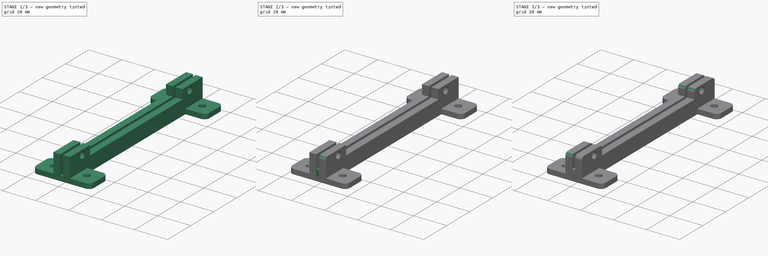
[diagram: build sequence overview — one tinted view per stage of 3, left to right]
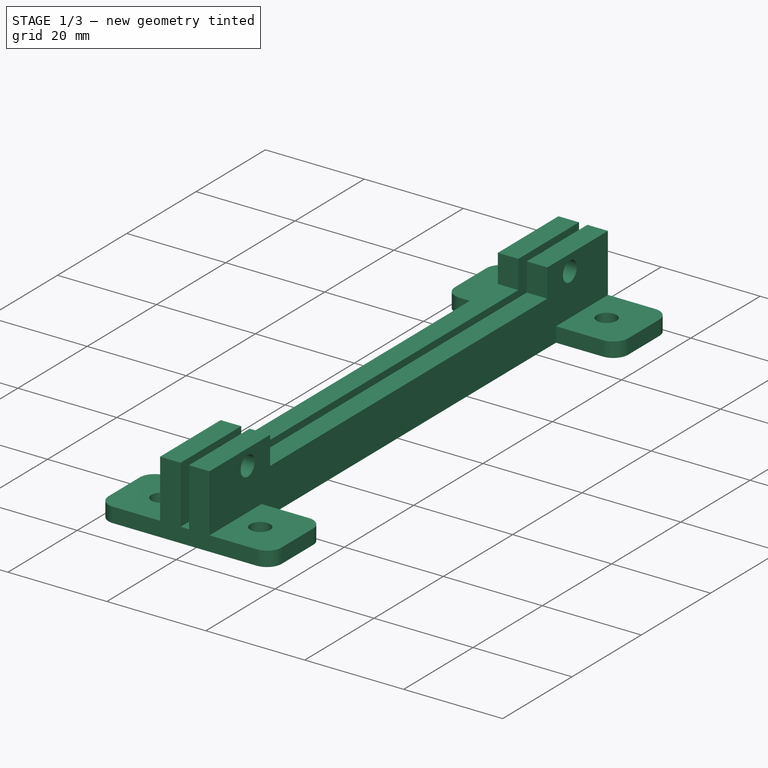
[diagram: stage 1 of 3 — iso view after this stage's code; geometry added in this stage tinted green]
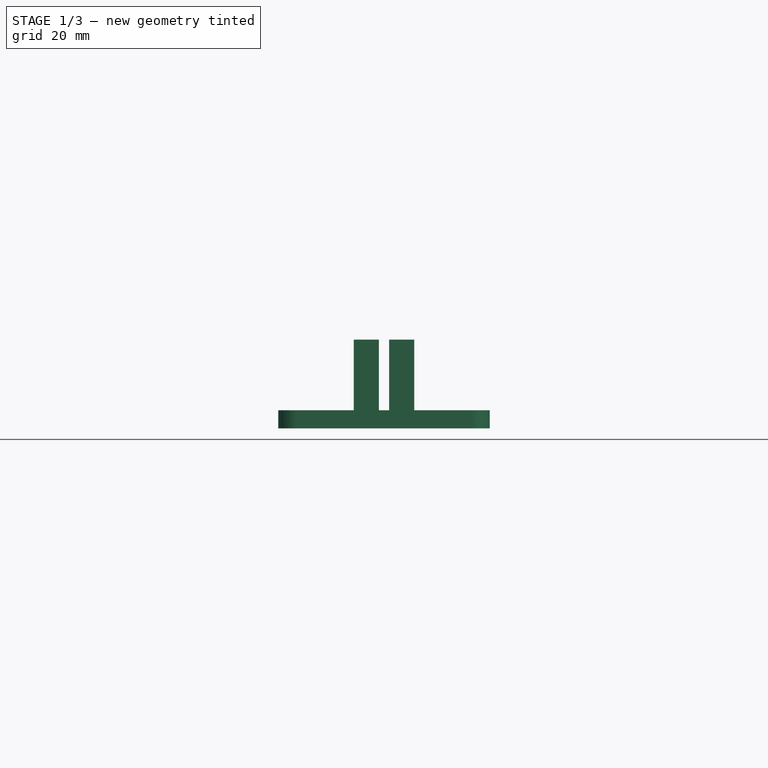
[diagram: stage 1 of 3 — front view after this stage's code; geometry added in this stage tinted green]
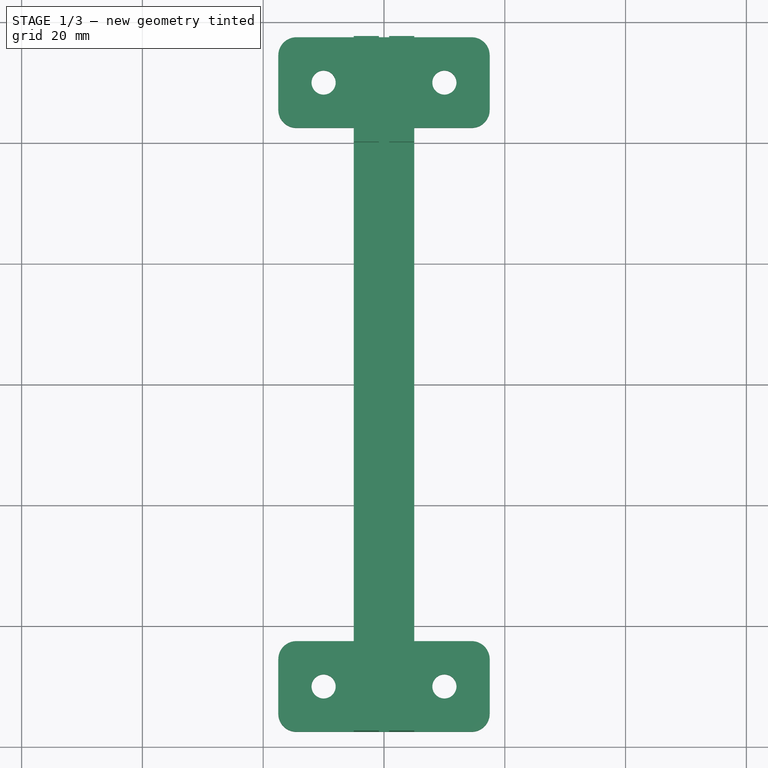
[diagram: stage 1 of 3 — top view after this stage's code; geometry added in this stage tinted green]
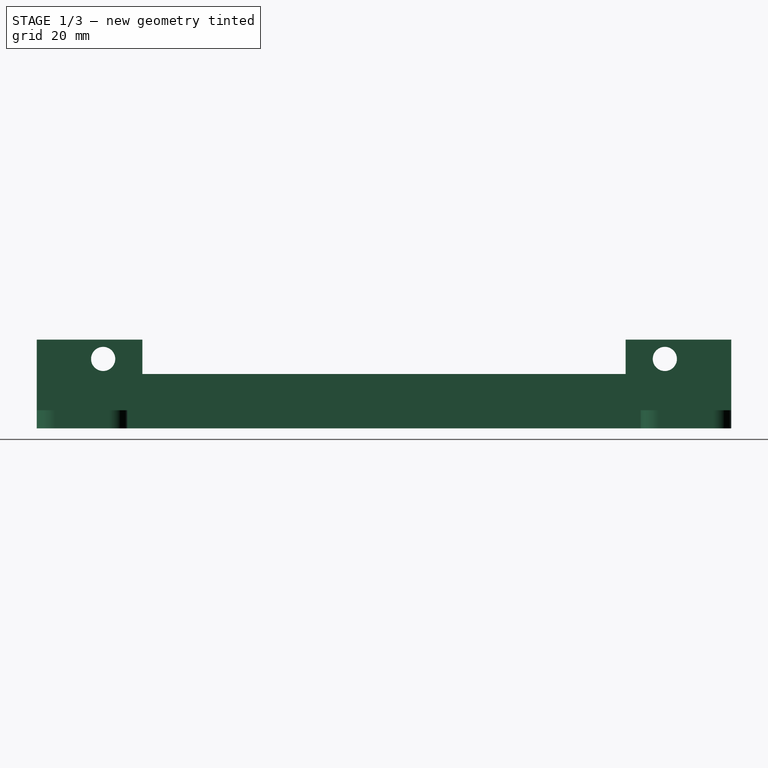
[diagram: stage 1 of 3 — right view after this stage's code; geometry added in this stage tinted green]
FCSTD DOCUMENT  (FreeCAD 0.19R24267 +99 (Git))
Label: Mounting Bracket V010
License: All rights reserved
LicenseURL: http://en.wikipedia.org/wiki/All_rights_reserved
objects: Sketcher::SketchObject×4, PartDesign::Fillet×4, PartDesign::Pad×3, PartDesign::Pocket×1, PartDesign::Body×1
note: 21 computed .brp shape members not serialized (recipe doc carries the construction recipe); baked Part::Feature solids carry a one-line shape summary decoded from their .brp

FEATURE [Sketcher::SketchObject] Sketch
  FullyConstrained = true
  MapMode = 5
  Support = -> [XY_Plane]
  sketch-geometry (24):
    g0: LineSegment StartX=-14.5 StartY=57.5 StartZ=0 EndX=14.5 EndY=57.5 EndZ=0
    g1: LineSegment StartX=17.5 StartY=54.5 StartZ=0 EndX=17.5 EndY=45.5 EndZ=0
    g2: LineSegment StartX=14.5 StartY=-57.5 StartZ=0 EndX=-14.5 EndY=-57.5 EndZ=0
    g3: LineSegment StartX=-17.5 StartY=-54.5 StartZ=0 EndX=-17.5 EndY=-45.5 EndZ=0
    g4: LineSegment StartX=-14.5 StartY=42.5 StartZ=0 EndX=-5 EndY=42.5 EndZ=0
    g5: LineSegment StartX=-5 StartY=42.5 StartZ=0 EndX=-5 EndY=-42.5 EndZ=0
    g6: LineSegment StartX=-5 StartY=-42.5 StartZ=0 EndX=-14.5 EndY=-42.5 EndZ=0
    g7: LineSegment StartX=14.5 StartY=42.5 StartZ=0 EndX=5 EndY=42.5 EndZ=0
    g8: LineSegment StartX=5 StartY=42.5 StartZ=0 EndX=5 EndY=-42.5 EndZ=0
    g9: LineSegment StartX=5 StartY=-42.5 StartZ=0 EndX=14.5 EndY=-42.5 EndZ=0
    g10: LineSegment StartX=17.5 StartY=-45.5 StartZ=0 EndX=17.5 EndY=-54.5 EndZ=0
    g11: LineSegment StartX=-17.5 StartY=45.5 StartZ=0 EndX=-17.5 EndY=54.5 EndZ=0
    g12: ArcOfCircle CenterX=-14.5 CenterY=54.5 CenterZ=0 NormalX=0 NormalY=0 NormalZ=1 AngleXU=0 Radius=3 StartAngle=1.5708 EndAngle=3.14159
    g13: ArcOfCircle CenterX=14.5 CenterY=54.5 CenterZ=0 NormalX=0 NormalY=0 NormalZ=1 AngleXU=0 Radius=3 StartAngle=0 EndAngle=1.5708
    g14: ArcOfCircle CenterX=-14.5 CenterY=45.5 CenterZ=0 NormalX=0 NormalY=0 NormalZ=1 AngleXU=0 Radius=3 StartAngle=3.14159 EndAngle=4.71239
    g15: ArcOfCircle CenterX=14.5 CenterY=45.5 CenterZ=0 NormalX=0 NormalY=0 NormalZ=1 AngleXU=0 Radius=3 StartAngle=4.71239 EndAngle=6.28319
    g16: ArcOfCircle CenterX=-14.5 CenterY=-45.5 CenterZ=0 NormalX=0 NormalY=0 NormalZ=1 AngleXU=0 Radius=3 StartAngle=1.5708 EndAngle=3.14159
    g17: ArcOfCircle CenterX=14.5 CenterY=-45.5 CenterZ=0 NormalX=0 NormalY=0 NormalZ=1 AngleXU=0 Radius=3 StartAngle=-1.8e-15 EndAngle=1.5708
    g18: ArcOfCircle CenterX=-14.5 CenterY=-54.5 CenterZ=0 NormalX=0 NormalY=0 NormalZ=1 AngleXU=0 Radius=3 StartAngle=3.14159 EndAngle=4.71239
    g19: ArcOfCircle CenterX=14.5 CenterY=-54.5 CenterZ=0 NormalX=0 NormalY=0 NormalZ=1 AngleXU=0 Radius=3 StartAngle=4.71239 EndAngle=6.28319
    g20: Circle CenterX=-10 CenterY=50 CenterZ=0 NormalX=0 NormalY=0 NormalZ=1 AngleXU=0 Radius=2
    g21: Circle CenterX=10 CenterY=50 CenterZ=0 NormalX=0 NormalY=0 NormalZ=1 AngleXU=0 Radius=2
    g22: Circle CenterX=-10 CenterY=-50 CenterZ=0 NormalX=0 NormalY=0 NormalZ=1 AngleXU=0 Radius=2
    g23: Circle CenterX=10 CenterY=-50 CenterZ=0 NormalX=0 NormalY=0 NormalZ=1 AngleXU=0 Radius=2
  constraints (62):
    c: Horizontal(g0)
    c: Horizontal(g2)
    c: Vertical(g1)
    c: Vertical(g3)
    c: Coincident(g4,g5)
    c: Coincident(g5,g6)
    c: Horizontal(g4)
    c: Horizontal(g6)
    c: Vertical(g5)
    c: Coincident(g7,g8)
    c: Coincident(g8,g9)
    c: Horizontal(g7)
    c: Horizontal(g9)
    c: Vertical(g8)
    c: DistanceY(g5,g5) = 85
    c: DistanceY(g8,g8) = 85
    c: DistanceY(g5,g-1) = 42.5
    c: DistanceY(g8,g-1) = 42.5
    c: Tangent(g1,g10)
    c: Tangent(g3,g11)
    c: Tangent(g0,g12) = 1.5708
    c: Tangent(g11,g12) = 1.5708
    c: Radius(g12) = 3
    c: Tangent(g0,g13) = 1.5708
    c: Tangent(g1,g13) = 1.5708
    c: Tangent(g11,g14) = 1.5708
    c: Tangent(g4,g14) = -1.5708
    c: Tangent(g1,g15) = 1.5708
    c: Tangent(g7,g15) = 1.5708
    c: Tangent(g6,g16) = -1.5708
    c: Tangent(g3,g16) = 1.5708
    c: Radius(g16) = 3
    c: Tangent(g9,g17) = 1.5708
    c: Tangent(g10,g17) = 1.5708
    c: Radius(g17) = 3
    c: Radius(g15) = 3
    c: Tangent(g3,g18) = 1.5708
    c: Tangent(g2,g18) = 1.5708
    c: Tangent(g2,g19) = 1.5708
    c: Tangent(g10,g19) = 1.5708
    c: Radius(g19) = 3
    c: DistanceX(g3,g-1) = 17.5
    c: DistanceX(g-1,g10) = 17.5
    c: Radius(g13) = 3
    c: DistanceY(g7,g0) = 15
    c: DistanceY(g2,g8) = 15
    c: DistanceX(g-1,g8) = 5
    c: DistanceX(g5,g-1) = 5
    c: Radius(g14) = 3
    c: Radius(g18) = 3
    c: DistanceY(g20) = 50
    c: Horizontal(g20,g21)
    c: DistanceY(g22,g-1) = 50
    c: Horizontal(g22,g23)
    c: DistanceX(g20,g-1) = 10
    c: DistanceX(g-1,g21) = 10
    c: Equal(g20,g21)
    c: Equal(g20,g22)
    c: Equal(g20,g23)
    c: Radius(g20) = 2
    c: DistanceX(g22,g-1) = 10
    c: DistanceX(g-1,g23) = 10
FEATURE [PartDesign::Pad] Pad
  Direction = (1,1,1)
  Length = 3
  Length2 = 100
  Profile = -> Sketch
  Type = 0
FEATURE [Sketcher::SketchObject] Sketch001
  AttachmentOffset = pos=(0,0,3) rot=(0,0,1;0rad)
  FullyConstrained = true
  MapMode = 5
  Placement = pos=(0,0,3) rot=(0,0,1;0rad)
  Support = -> [XY_Plane]
  sketch-geometry (8):
    g0: LineSegment StartX=-5 StartY=57.5 StartZ=0 EndX=-0.85 EndY=57.5 EndZ=0
    g1: LineSegment StartX=-0.85 StartY=57.5 StartZ=0 EndX=-0.85 EndY=-57.5 EndZ=0
    g2: LineSegment StartX=-0.85 StartY=-57.5 StartZ=0 EndX=-5 EndY=-57.5 EndZ=0
    g3: LineSegment StartX=-5 StartY=-57.5 StartZ=0 EndX=-5 EndY=57.5 EndZ=0
    g4: LineSegment StartX=0.85 StartY=57.5 StartZ=0 EndX=5 EndY=57.5 EndZ=0
    g5: LineSegment StartX=5 StartY=57.5 StartZ=0 EndX=5 EndY=-57.5 EndZ=0
    g6: LineSegment StartX=5 StartY=-57.5 StartZ=0 EndX=0.85 EndY=-57.5 EndZ=0
    g7: LineSegment StartX=0.85 StartY=-57.5 StartZ=0 EndX=0.85 EndY=57.5 EndZ=0
  constraints (22):
    c: Coincident(g0,g1)
    c: Coincident(g1,g2)
    c: Coincident(g2,g3)
    c: Coincident(g3,g0)
    c: Horizontal(g0)
    c: Horizontal(g2)
    c: Vertical(g3)
    c: Coincident(g4,g5)
    c: Coincident(g5,g6)
    c: Coincident(g6,g7)
    c: Coincident(g7,g4)
    c: Horizontal(g4)
    c: Horizontal(g6)
    c: Vertical(g5)
    c: DistanceX(g-1,g4) = 5
    c: DistanceX(g0,g-1) = 5
    c: DistanceX(g0,g0) = 4.15
    c: DistanceX(g4,g4) = 4.15
    c: DistanceY(g3,g3) = 115
    c: DistanceY(g7,g7) = 115
    c: Symmetric(g0,g1,g-1)
    c: Symmetric(g4,g6,g-1)
FEATURE [PartDesign::Pad] Pad001
  BaseFeature = -> Pad
  Direction = (1,1,1)
  Length = 11.7
  Length2 = 100
  Profile = -> Sketch001
  Type = 0
FEATURE [Sketcher::SketchObject] Sketch002
  AttachmentOffset = pos=(0,0,5) rot=(0,0,1;0rad)
  FullyConstrained = true
  MapMode = 5
  Placement = pos=(5,-1.1e-15,1.1e-15) rot=(0.57735,0.57735,0.57735;2.0944rad)
  Support = -> [YZ_Plane]
  sketch-geometry (6):
    g0: LineSegment StartX=-40 StartY=15 StartZ=0 EndX=40 EndY=15 EndZ=0
    g1: LineSegment StartX=40 StartY=15 StartZ=0 EndX=40 EndY=9 EndZ=0
    g2: LineSegment StartX=40 StartY=9 StartZ=0 EndX=-40 EndY=9 EndZ=0
    g3: LineSegment StartX=-40 StartY=9 StartZ=0 EndX=-40 EndY=15 EndZ=0
    g4: Circle CenterX=-46.5 CenterY=11.5 CenterZ=0 NormalX=0 NormalY=0 NormalZ=1 AngleXU=0 Radius=2
    g5: Circle CenterX=46.5 CenterY=11.5 CenterZ=0 NormalX=0 NormalY=0 NormalZ=1 AngleXU=0 Radius=2
  constraints (18):
    c: Coincident(g0,g1)
    c: Coincident(g1,g2)
    c: Coincident(g2,g3)
    c: Coincident(g3,g0)
    c: Horizontal(g0)
    c: Horizontal(g2)
    c: Vertical(g1)
    c: Vertical(g3)
    c: DistanceY(g-1,g2) = 9
    c: DistanceX(g2,g2) = 80
    c: DistanceX(g2,g-1) = 40
    c: DistanceY(g3,g3) = 6
    c: DistanceY(g-1,g5) = 11.5
    c: Horizontal(g5,g4)
    c: Equal(g4,g5)
    c: Radius(g4) = 2
    c: DistanceX(g4,g-1) = 46.5
    c: DistanceX(g-1,g5) = 46.5
FEATURE [PartDesign::Pocket] Pocket
  BaseFeature = -> Pad001
  Length = 15
  Length2 = 100
  Profile = -> Sketch002
  Type = 0
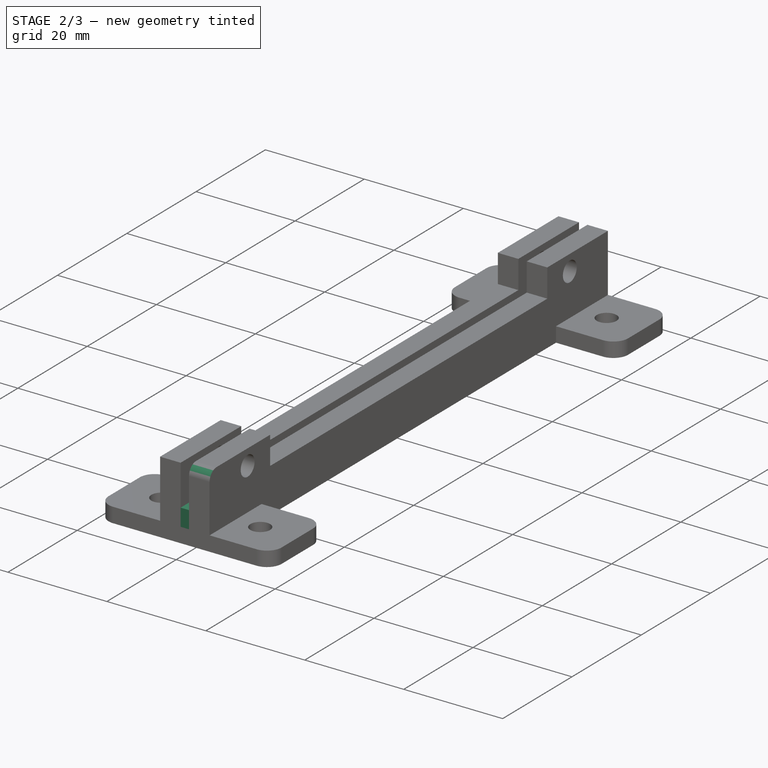
[diagram: stage 2 of 3 — iso view after this stage's code; geometry added in this stage tinted green]
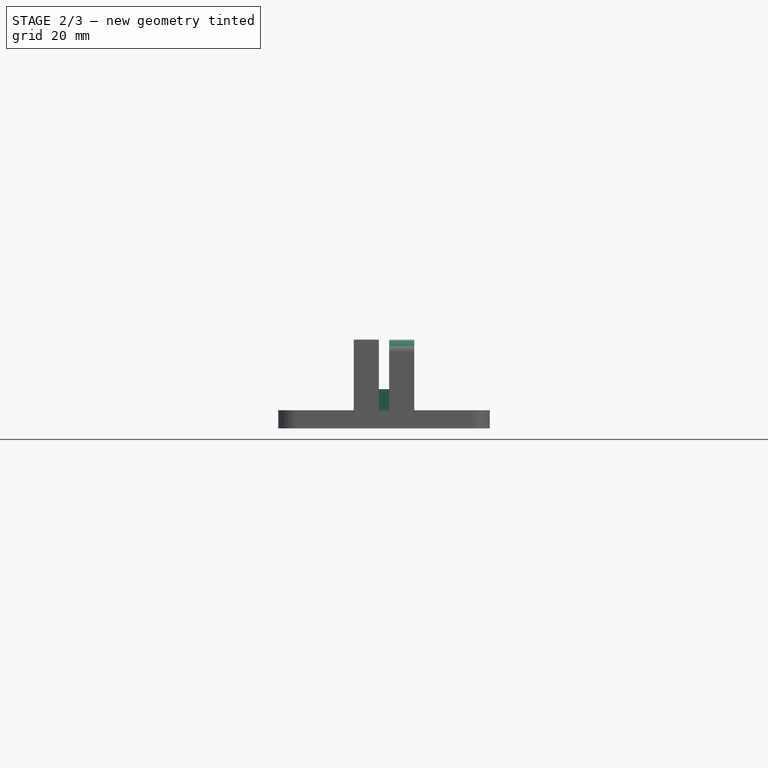
[diagram: stage 2 of 3 — front view after this stage's code; geometry added in this stage tinted green]
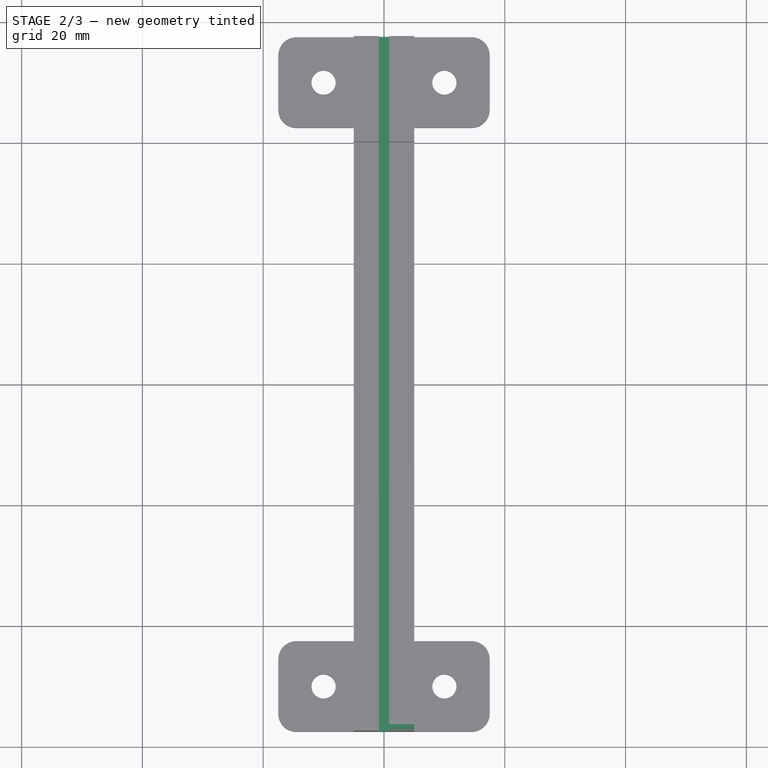
[diagram: stage 2 of 3 — top view after this stage's code; geometry added in this stage tinted green]
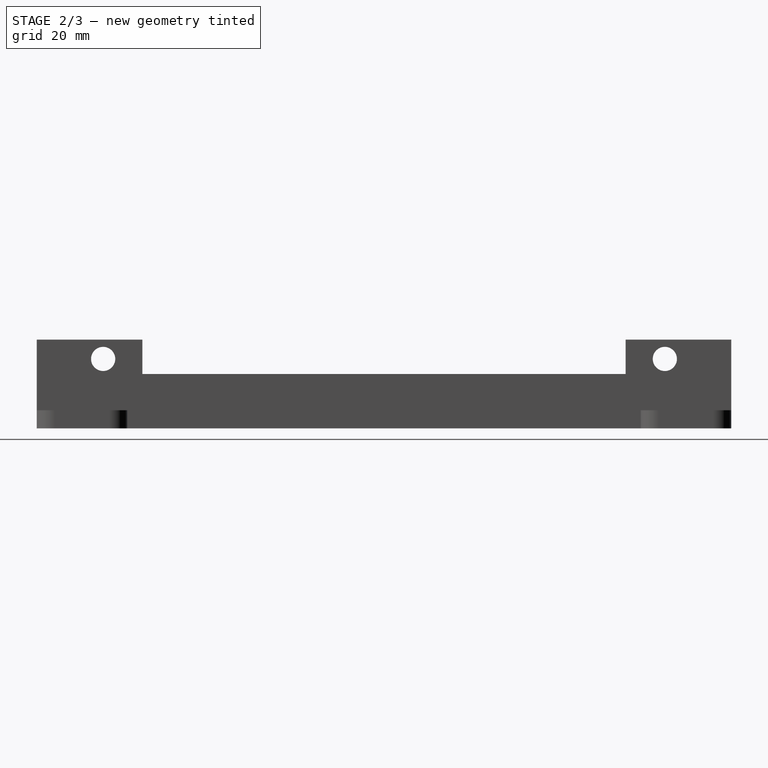
[diagram: stage 2 of 3 — right view after this stage's code; geometry added in this stage tinted green]
FEATURE [Sketcher::SketchObject] Sketch003
  AttachmentOffset = pos=(0,0,3) rot=(0,0,1;0rad)
  FullyConstrained = false
  MapMode = 5
  Placement = pos=(0,0,3) rot=(0,0,1;0rad)
  Support = -> [XY_Plane]
  sketch-geometry (4):
    g0: LineSegment StartX=-1.70306 StartY=57.5 StartZ=0 EndX=2.38694 EndY=57.5 EndZ=0
    g1: LineSegment StartX=2.38694 StartY=57.5 StartZ=0 EndX=2.38694 EndY=-57.5 EndZ=0
    g2: LineSegment StartX=2.38694 StartY=-57.5 StartZ=0 EndX=-1.70306 EndY=-57.5 EndZ=0
    g3: LineSegment StartX=-1.70306 StartY=-57.5 StartZ=0 EndX=-1.70306 EndY=57.5 EndZ=0
  constraints (11):
    c: Coincident(g0,g1)
    c: Coincident(g1,g2)
    c: Coincident(g2,g3)
    c: Coincident(g3,g0)
    c: Horizontal(g0)
    c: Horizontal(g2)
    c: Vertical(g1)
    c: Vertical(g3)
    c: DistanceX(g2,g2) = 4.09
    c: DistanceY(g3,g3) = 115
    c: DistanceY(g2,g-1) = 57.5
FEATURE [PartDesign::Pad] Pad002
  BaseFeature = -> Pocket
  Direction = (1,1,1)
  Length = 3.5
  Length2 = 100
  Profile = -> Sketch003
  Type = 0
FEATURE [PartDesign::Fillet] Fillet
  Base = -> Pad002 [Edge121]
  BaseFeature = -> Pad002
  Radius = 2
  SupportTransform = false
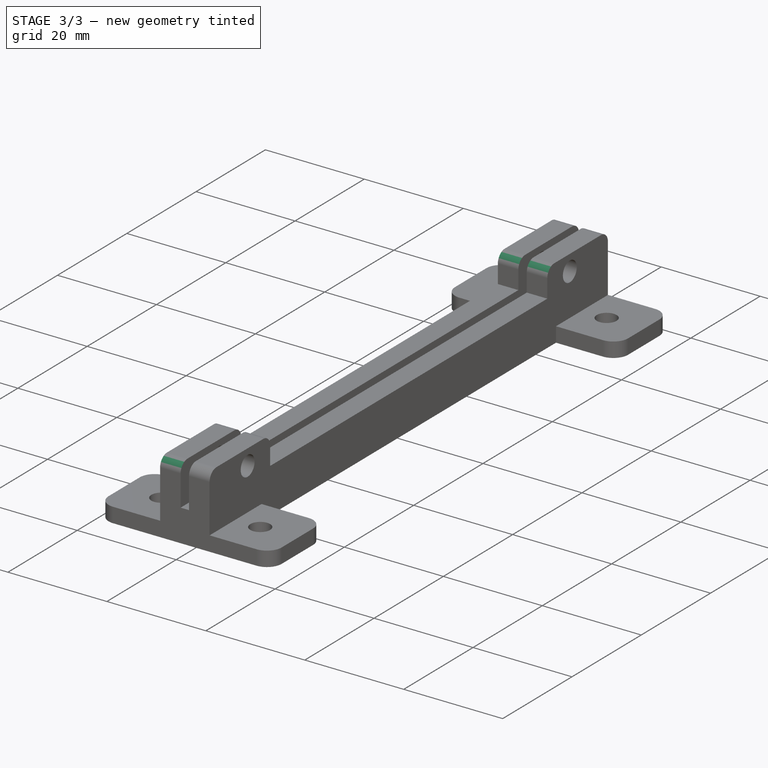
[diagram: stage 3 of 3 — iso view after this stage's code; geometry added in this stage tinted green]
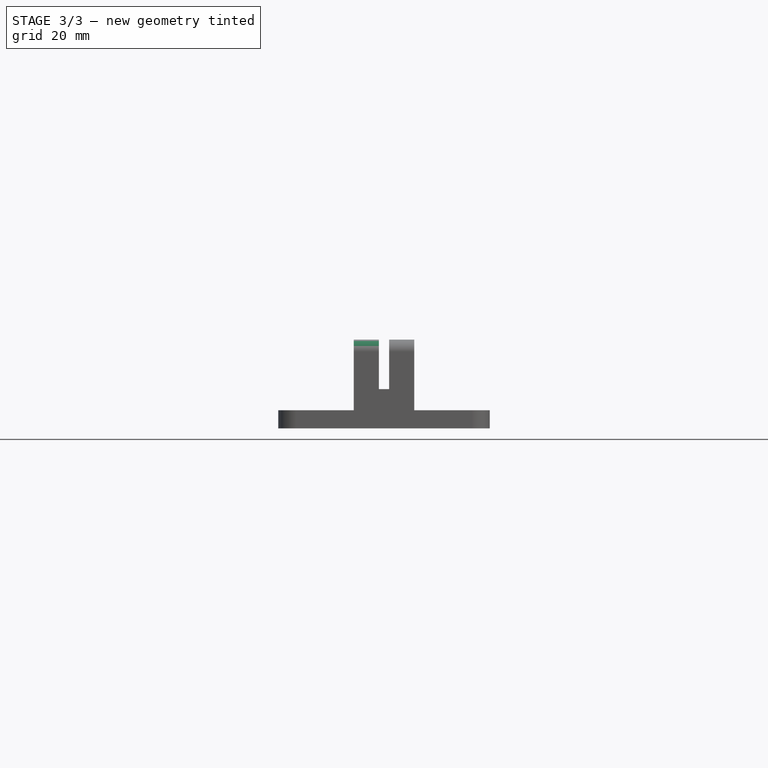
[diagram: stage 3 of 3 — front view after this stage's code; geometry added in this stage tinted green]
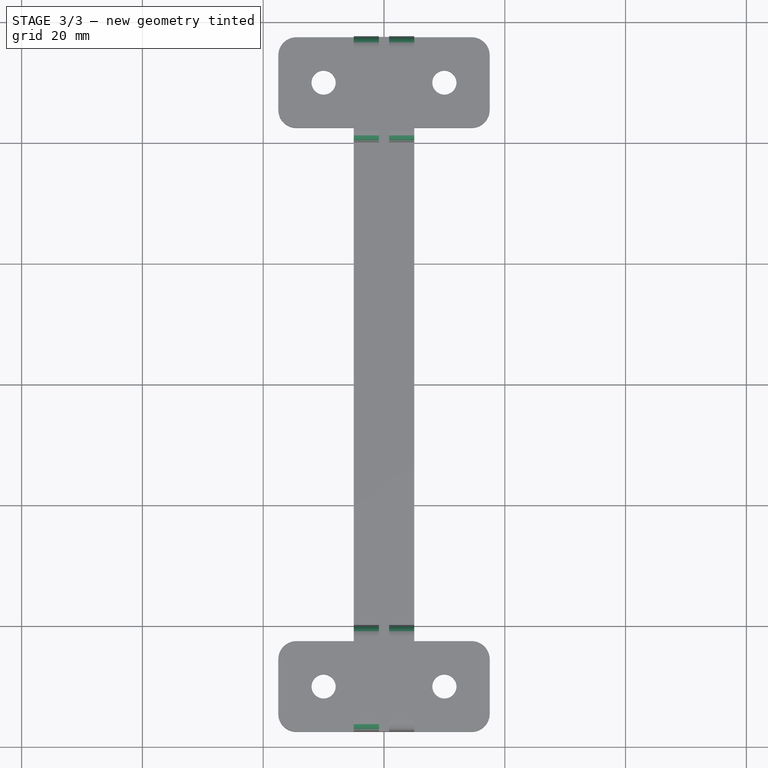
[diagram: stage 3 of 3 — top view after this stage's code; geometry added in this stage tinted green]
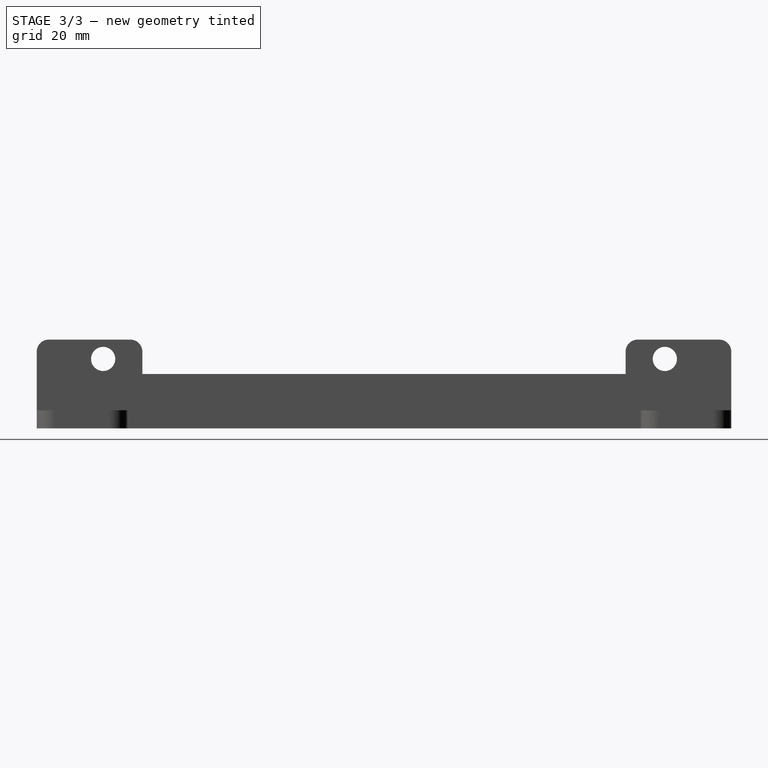
[diagram: stage 3 of 3 — right view after this stage's code; geometry added in this stage tinted green]
FEATURE [PartDesign::Fillet] Fillet001
  Base = -> Fillet [Edge111]
  BaseFeature = -> Fillet
  Radius = 2
  SupportTransform = false
FEATURE [PartDesign::Fillet] Fillet002
  Base = -> Fillet001 [Edge52,Edge156]
  BaseFeature = -> Fillet001
  Radius = 2
  SupportTransform = false
FEATURE [PartDesign::Fillet] Fillet003
  Base = -> Fillet002 [Edge35,Edge166,Edge16,Edge163]
  BaseFeature = -> Fillet002
  Radius = 2
  SupportTransform = false
FEATURE [PartDesign::Body] Body
  Group = -> [Sketch,Pad,Sketch001,Pad001,Sketch002,Pocket,Sketch003,Pad002,Fillet,Fillet001,Fillet002,Fillet003]
  Origin = -> Origin
  Tip = -> Fillet003
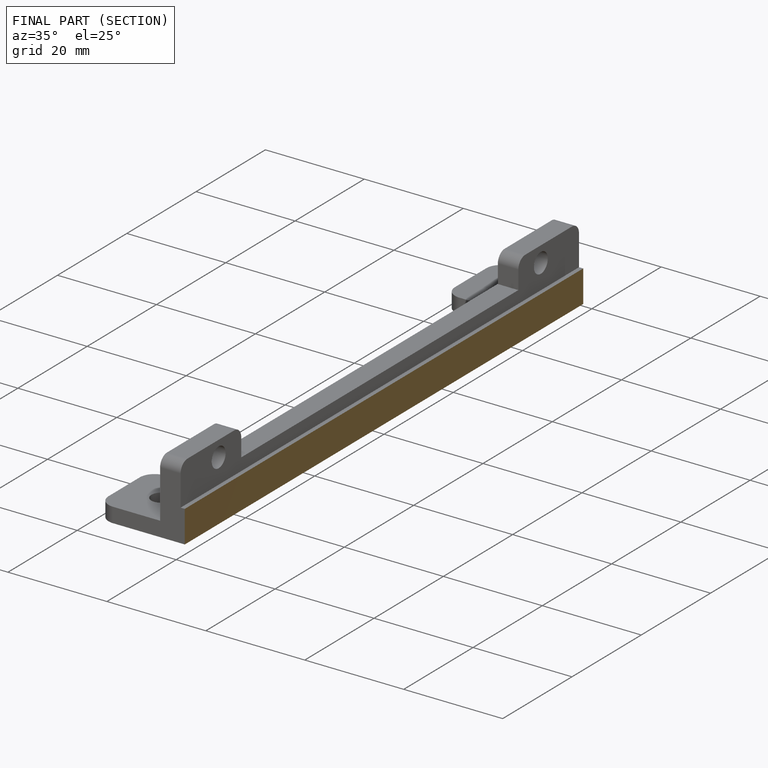
[diagram: finished part — half-section view (interior)]
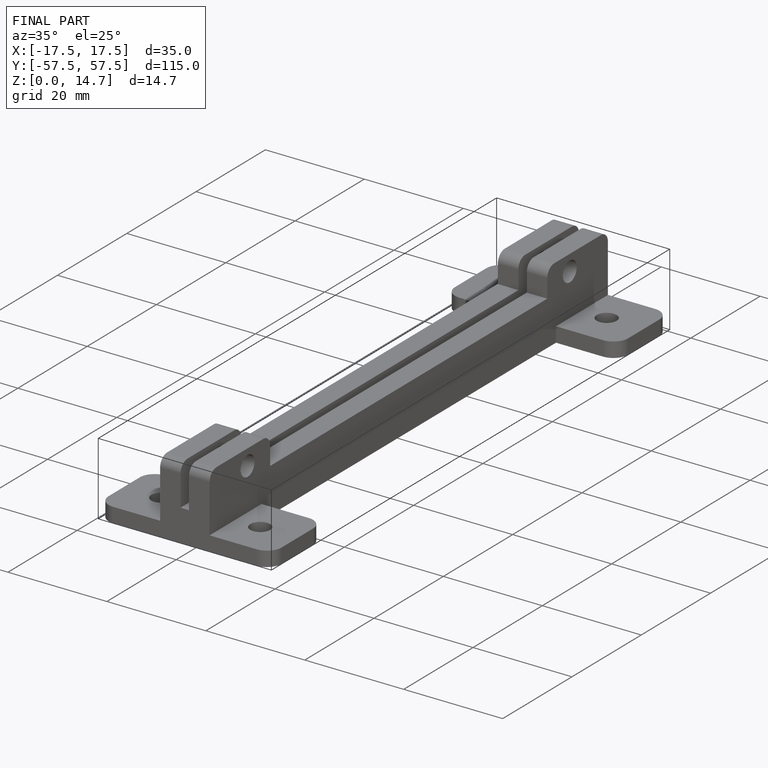
[diagram: finished part — iso view with bounding-box wireframe]
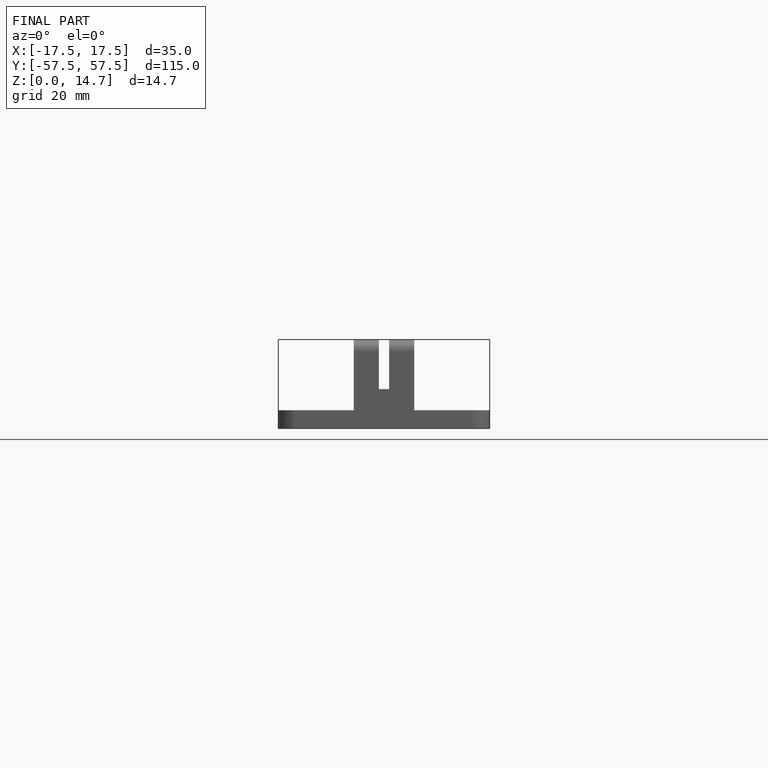
[diagram: finished part — front view with bounding-box wireframe]
